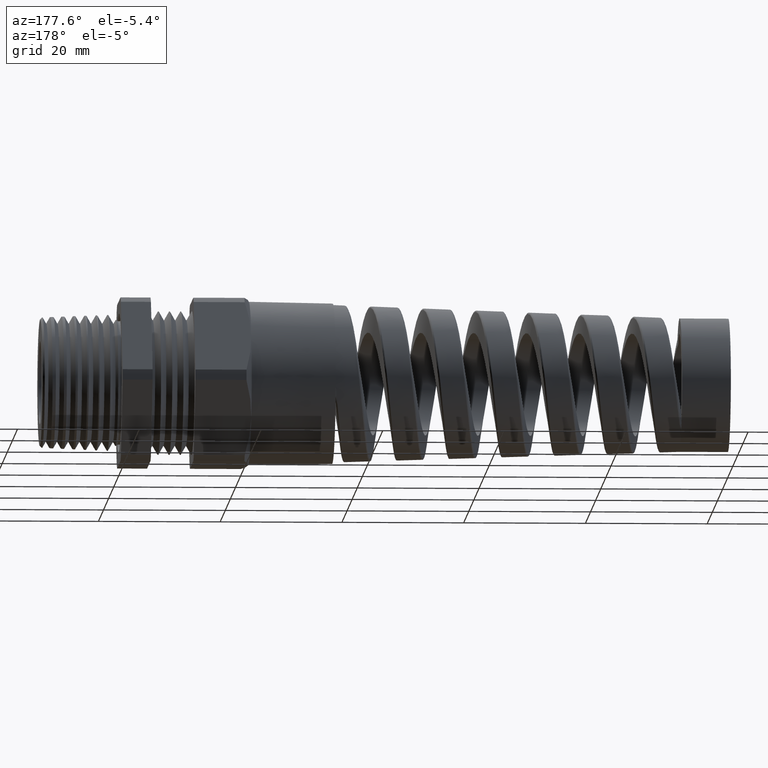
[diagram: clean part render]
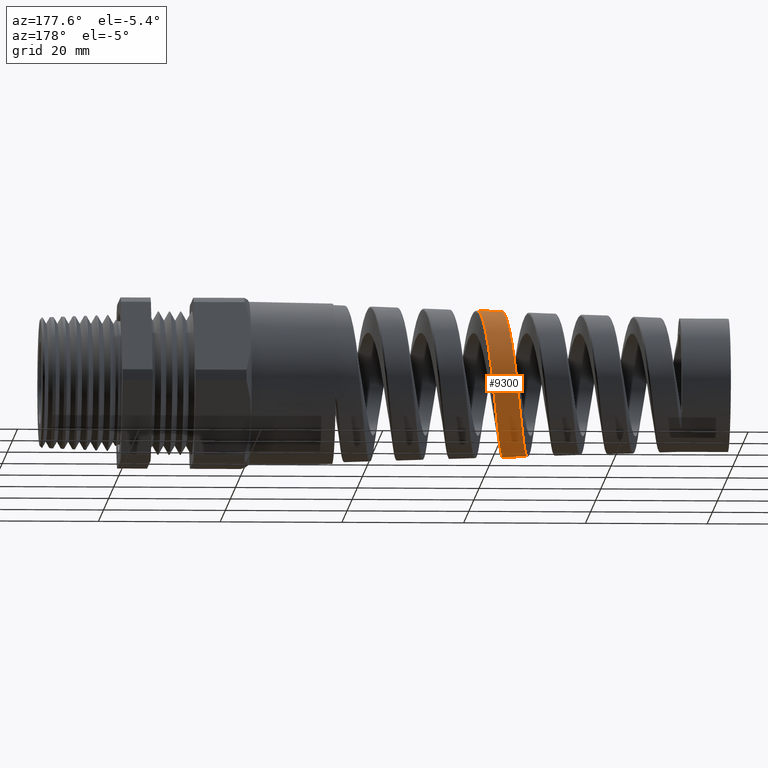
[diagram: same view with one face highlighted and labeled with its STEP entity id]
A machine part, auxiliary view. The second image highlights one B-rep face of the part: STEP entity #9300.
In plain terms, the highlighted conical surface has half-angle 2.001 deg.
Its self-contained STEP definition (entity closure, byte-faithful):
#2832 = B_SPLINE_CURVE_WITH_KNOTS ( 'NONE', 3,
 ( #2881, #2880, #2879, #2878, #2877, #2876, #2875, #2874, #2873, #2872, #2871, #2870, #2869, #2868, #2867, #2866, #2865, #2864, #2863, #2862, #2861, #2860, #2859, #2858, #2857, #2856, #2855, #2854, #2943, #2942, #2941, #2940, #2939, #2938, #2937, #2936, #2935, #2934, #2933, #2932, #2931, #2930, #2929, #2928, #2927, #2926 ),
 .UNSPECIFIED., .F., .F.,
 ( 4, 2, 2, 2, 2, 2, 2, 2, 2, 2, 2, 2, 2, 2, 2, 2, 2, 2, 2, 2, 2, 2, 4 ),
 ( 0.2117692628855186200, 0.2129603492854065500, 0.2141514356852944600, 0.2165336084850703300, 0.2177246948849582700, 0.2189157812848462100, 0.2212979540846220500, 0.2224890404845099900, 0.2236801268843979000, 0.2260622996841737700, 0.2284444724839496400, 0.2296355588838375800, 0.2308266452837255100, 0.2332088180835013800, 0.2355909908832772600, 0.2379731636830531000, 0.2391642500829410700, 0.2403553364828289700, 0.2427375092826048500, 0.2451196820823807200, 0.2475018548821565900, 0.2486929412820445300, 0.2498840276819324600 ),
 .UNSPECIFIED. ) ;
#2854 = CARTESIAN_POINT ( 'NONE',  ( -2.537967270265181400, 0.4550849624353888700, 0.1237118754605127200 ) ) ;
#2855 = CARTESIAN_POINT ( 'NONE',  ( -2.545037098795821500, 0.4670578433731356100, 0.06349444830292601300 ) ) ;
#2856 = CARTESIAN_POINT ( 'NONE',  ( -2.548544926428692600, 0.4700818496145421400, 0.03302318641316814200 ) ) ;
#2857 = CARTESIAN_POINT ( 'NONE',  ( -2.553872444854310000, 0.4701114422082105500, -0.01322274054949038200 ) ) ;
#2858 = CARTESIAN_POINT ( 'NONE',  ( -2.555666905592328700, 0.4693523486978479200, -0.02879371922910435900 ) ) ;
#2859 = CARTESIAN_POINT ( 'NONE',  ( -2.559221443272995200, 0.4663329732338020200, -0.05947746034167887600 ) ) ;
#2860 = CARTESIAN_POINT ( 'NONE',  ( -2.560988968504807100, 0.4640790047269091100, -0.07465521659790914900 ) ) ;
#2861 = CARTESIAN_POINT ( 'NONE',  ( -2.566285216770390700, 0.4551297916203755300, -0.1197035351832366800 ) ) ;
#2862 = CARTESIAN_POINT ( 'NONE',  ( -2.569812121951858200, 0.4462514398984158100, -0.1491350264738573200 ) ) ;
#2863 = CARTESIAN_POINT ( 'NONE',  ( -2.576973168489528700, 0.4225118027951231800, -0.2064716982333981700 ) ) ;
#2864 = CARTESIAN_POINT ( 'NONE',  ( -2.580499710013874500, 0.4080184810628724700, -0.2335108249342751600 ) ) ;
#2865 = CARTESIAN_POINT ( 'NONE',  ( -2.585804589551432100, 0.3824966804912276500, -0.2717082840487412600 ) ) ;
#2866 = CARTESIAN_POINT ( 'NONE',  ( -2.587575464526801600, 0.3733545118275945500, -0.2840443534512938100 ) ) ;
#2867 = CARTESIAN_POINT ( 'NONE',  ( -2.591140765767250300, 0.3537709517086529700, -0.3079027914534678800 ) ) ;
#2868 = CARTESIAN_POINT ( 'NONE',  ( -2.592939123927308300, 0.3432990667048865800, -0.3194429705014682500 ) ) ;
#2869 = CARTESIAN_POINT ( 'NONE',  ( -2.598279002016813600, 0.3106041714967566800, -0.3520790298631544200 ) ) ;
#2870 = CARTESIAN_POINT ( 'NONE',  ( -2.601803506733777500, 0.2869166248563562200, -0.3714747468751601900 ) ) ;
#2871 = CARTESIAN_POINT ( 'NONE',  ( -2.607132940450843000, 0.2485760337171892800, -0.3970420072565664600 ) ) ;
#2872 = CARTESIAN_POINT ( 'NONE',  ( -2.608923938658138200, 0.2352703477084158700, -0.4050007375308328800 ) ) ;
#2873 = CARTESIAN_POINT ( 'NONE',  ( -2.612507839593476400, 0.2079269657522441500, -0.4195556190461420800 ) ) ;
#2874 = CARTESIAN_POINT ( 'NONE',  ( -2.614286861037566000, 0.1939991121930573200, -0.4261007263113356600 ) ) ;
#2875 = CARTESIAN_POINT ( 'NONE',  ( -2.619611665186741600, 0.1514728498963927900, -0.4436038278756639400 ) ) ;
#2876 = CARTESIAN_POINT ( 'NONE',  ( -2.623143573885113400, 0.1221385735661792600, -0.4524498335735410200 ) ) ;
#2877 = CARTESIAN_POINT ( 'NONE',  ( -2.628514456278366200, 0.07663493960611825200, -0.4613714620362017200 ) ) ;
#2878 = CARTESIAN_POINT ( 'NONE',  ( -2.630314692305024200, 0.06123706236595084800, -0.4636004867277768200 ) ) ;
#2879 = CARTESIAN_POINT ( 'NONE',  ( -2.633879674200037000, 0.03061406576592377900, -0.4664994956016481600 ) ) ;
#2880 = CARTESIAN_POINT ( 'NONE',  ( -2.635654312737810900, 0.01530523684003182000, -0.4671879009970279500 ) ) ;
#2881 = CARTESIAN_POINT ( 'NONE',  ( -2.637429450301935800, -2.192460996810594900E-016, -0.4671258929059360900 ) ) ;
#2926 = CARTESIAN_POINT ( 'NONE',  ( -2.467270779108219300, -1.346590969780569100E-015, 0.4730697783809043000 ) ) ;
#2927 = CARTESIAN_POINT ( 'NONE',  ( -2.469023700943529900, 0.01531347027129598000, 0.4730085463169574900 ) ) ;
#2928 = CARTESIAN_POINT ( 'NONE',  ( -2.470779349826260200, 0.03064693398149727400, 0.4722054503191767100 ) ) ;
#2929 = CARTESIAN_POINT ( 'NONE',  ( -2.474313900516032400, 0.06135276564842985500, 0.4690802581714281800 ) ) ;
#2930 = CARTESIAN_POINT ( 'NONE',  ( -2.476097184438569500, 0.07676107699330064800, 0.4667422661737289400 ) ) ;
#2931 = CARTESIAN_POINT ( 'NONE',  ( -2.481392549425481600, 0.1220490655993793900, 0.4575821164971773900 ) ) ;
#2932 = CARTESIAN_POINT ( 'NONE',  ( -2.484886256684036600, 0.1513233263820677700, 0.4486175724705439600 ) ) ;
#2933 = CARTESIAN_POINT ( 'NONE',  ( -2.491928269230587300, 0.2080371280096089700, 0.4250231211186149000 ) ) ;
#2934 = CARTESIAN_POINT ( 'NONE',  ( -2.495494142379712300, 0.2355767497188871500, 0.4102801881972526500 ) ) ;
#2935 = CARTESIAN_POINT ( 'NONE',  ( -2.502618910801111400, 0.2871197930438307800, 0.3757040608057658500 ) ) ;
#2936 = CARTESIAN_POINT ( 'NONE',  ( -2.506136497689661600, 0.3108644798034901300, 0.3561079989270548000 ) ) ;
#2937 = CARTESIAN_POINT ( 'NONE',  ( -2.511409516034154100, 0.3433015076716601200, 0.3236000666529379500 ) ) ;
#2938 = CARTESIAN_POINT ( 'NONE',  ( -2.513168865377352300, 0.3535951777359465100, 0.3122311971198325500 ) ) ;
#2939 = CARTESIAN_POINT ( 'NONE',  ( -2.516708275258417300, 0.3731241191301657400, 0.2884089043579165500 ) ) ;
#2940 = CARTESIAN_POINT ( 'NONE',  ( -2.518497634790008100, 0.3824008091614422000, 0.2758856732038744200 ) ) ;
#2941 = CARTESIAN_POINT ( 'NONE',  ( -2.523820248174648100, 0.4080886030884500700, 0.2373733464843162100 ) ) ;
#2942 = CARTESIAN_POINT ( 'NONE',  ( -2.527324121147747500, 0.4225030630433169200, 0.2103498373021155100 ) ) ;
#2943 = CARTESIAN_POINT ( 'NONE',  ( -2.534381031369780300, 0.4459942405533908200, 0.1536648749362369300 ) ) ;
#3077 = DIRECTION ( 'NONE',  ( 0.9993904554178625300, 0.0000000000000000000, -0.03491013634572581700 ) ) ;
#3078 = VECTOR ( 'NONE', #3077, 39.37007874015748900 ) ;
#3079 = CARTESIAN_POINT ( 'NONE',  ( -0.8375000000000000200, 0.0000000000000000000, -0.5299999999999999200 ) ) ;
#3080 = LINE ( 'NONE', #3079, #3078 ) ;
#3173 = DIRECTION ( 'NONE',  ( 0.9993904554178625300, 4.275258673359080400E-018, 0.03491013634572581700 ) ) ;
#3174 = VECTOR ( 'NONE', #3173, 39.37007874015748900 ) ;
#3175 = CARTESIAN_POINT ( 'NONE',  ( -0.8375000000000000200, 6.490628035480970000E-017, 0.5299999999999999200 ) ) ;
#3176 = LINE ( 'NONE', #3175, #3174 ) ;
#3229 = CARTESIAN_POINT ( 'NONE',  ( -2.467270779108219300, -1.346590969780569100E-015, 0.4730697783809043000 ) ) ;
#3230 = CARTESIAN_POINT ( 'NONE',  ( -2.637429450301935800, -2.192460996810594900E-016, -0.4671258929059360900 ) ) ;
#3231 = DIRECTION ( 'NONE',  ( 0.0000000000000000000, 0.0000000000000000000, -1.000000000000000000 ) ) ;
#3232 = DIRECTION ( 'NONE',  ( 1.000000000000000000, 0.0000000000000000000, 0.0000000000000000000 ) ) ;
#3233 = CARTESIAN_POINT ( 'NONE',  ( -0.8375000000000000200, 0.0000000000000000000, 0.0000000000000000000 ) ) ;
#3234 = AXIS2_PLACEMENT_3D ( 'NONE', #3233, #3232, #3231 ) ;
#3235 = CONICAL_SURFACE ( 'NONE', #3234, 0.5299999999999999200, 0.03491723117042447300 ) ;
#3236 = FACE_OUTER_BOUND ( 'NONE', #9301, .T. ) ;
#3249 = CARTESIAN_POINT ( 'NONE',  ( -2.310750066868051200, 3.498591783972760300E-013, 0.4785372704663172800 ) ) ;
#3295 = CARTESIAN_POINT ( 'NONE',  ( -2.439964782670241700, 0.3255227910294448700, -0.3449324349452029300 ) ) ;
#3296 = CARTESIAN_POINT ( 'NONE',  ( -2.434597972197361400, 0.3587299709382154000, -0.3117199020541283100 ) ) ;
#3297 = CARTESIAN_POINT ( 'NONE',  ( -2.431070538078334400, 0.3783772736949242400, -0.2877245844798895200 ) ) ;
#3298 = CARTESIAN_POINT ( 'NONE',  ( -2.425759758804820500, 0.4042135133651760800, -0.2490400254188046800 ) ) ;
#3299 = CARTESIAN_POINT ( 'NONE',  ( -2.423986067521758600, 0.4122154660789657000, -0.2356933798910105000 ) ) ;
#3300 = CARTESIAN_POINT ( 'NONE',  ( -2.420413163234777200, 0.4269629243557556100, -0.2080723396452033000 ) ) ;
#3301 = CARTESIAN_POINT ( 'NONE',  ( -2.418621567913542800, 0.4336686518860238800, -0.1938535073509325700 ) ) ;
#3302 = CARTESIAN_POINT ( 'NONE',  ( -2.413297189031788500, 0.4514779977396946000, -0.1507239303610321500 ) ) ;
#3303 = CARTESIAN_POINT ( 'NONE',  ( -2.409779632107790900, 0.4604456775880863000, -0.1210724472786072600 ) ) ;
#3304 = CARTESIAN_POINT ( 'NONE',  ( -2.404456075622651000, 0.4695263059513646900, -0.07525497489002204400 ) ) ;
#3305 = CARTESIAN_POINT ( 'NONE',  ( -2.402663247873048700, 0.4718254872320609100, -0.05966986383591947600 ) ) ;
#3306 = CARTESIAN_POINT ( 'NONE',  ( -2.399100759438431500, 0.4748505004188990400, -0.02855000435678207000 ) ) ;
#3307 = CARTESIAN_POINT ( 'NONE',  ( -2.397331428635410200, 0.4755872073186125900, -0.01302012756552039900 ) ) ;
#3308 = CARTESIAN_POINT ( 'NONE',  ( -2.392033383456653600, 0.4755298415973824300, 0.03347881596271096900 ) ) ;
#3309 = CARTESIAN_POINT ( 'NONE',  ( -2.388516485701990300, 0.4724897747221306100, 0.06435828033644441800 ) ) ;
#3310 = CARTESIAN_POINT ( 'NONE',  ( -2.383164476019036000, 0.4632745209582789200, 0.1104801767670675300 ) ) ;
#3311 = CARTESIAN_POINT ( 'NONE',  ( -2.381382891012996600, 0.4594430261881101200, 0.1256832068850677600 ) ) ;
#3312 = CARTESIAN_POINT ( 'NONE',  ( -2.377846327461663000, 0.4503853261690232700, 0.1554183411191331100 ) ) ;
#3313 = CARTESIAN_POINT ( 'NONE',  ( -2.376085132247068200, 0.4451486176100057900, 0.1700043348304961500 ) ) ;
#3314 = CARTESIAN_POINT ( 'NONE',  ( -2.372560713021387700, 0.4332749615857340300, 0.1986173577735662300 ) ) ;
#3315 = CARTESIAN_POINT ( 'NONE',  ( -2.370797603825979000, 0.4266380324015675000, 0.2126444084280113600 ) ) ;
#3316 = CARTESIAN_POINT ( 'NONE',  ( -2.367254475226071400, 0.4119395140162499500, 0.2401279697022517300 ) ) ;
#3317 = CARTESIAN_POINT ( 'NONE',  ( -2.365464762476521300, 0.4038282241562103400, 0.2536513168369048400 ) ) ;
#3318 = CARTESIAN_POINT ( 'NONE',  ( -2.360141866670310200, 0.3777775908488472700, 0.2925905275397177000 ) ) ;
#3319 = CARTESIAN_POINT ( 'NONE',  ( -2.356637447804207100, 0.3581000153261949000, 0.3165350185953050800 ) ) ;
#3320 = CARTESIAN_POINT ( 'NONE',  ( -2.349584959243138800, 0.3142206596594907500, 0.3604586877919241400 ) ) ;
#3321 = CARTESIAN_POINT ( 'NONE',  ( -2.346007750537690400, 0.2897486311663534700, 0.3805674384422183500 ) ) ;
#3322 = CARTESIAN_POINT ( 'NONE',  ( -2.338958829364957900, 0.2381085607149590600, 0.4151207912105399600 ) ) ;
#3323 = CARTESIAN_POINT ( 'NONE',  ( -2.335459907832897500, 0.2108079145587564700, 0.4297736957096393000 ) ) ;
#3324 = CARTESIAN_POINT ( 'NONE',  ( -2.330154054543882600, 0.1676207356134710400, 0.4477679802718287900 ) ) ;
#3325 = CARTESIAN_POINT ( 'NONE',  ( -2.328368286536246500, 0.1527792138783580800, 0.4531128906158726800 ) ) ;
#3326 = CARTESIAN_POINT ( 'NONE',  ( -2.324832097316909400, 0.1229324181583183600, 0.4622320688025596800 ) ) ;
#3327 = CARTESIAN_POINT ( 'NONE',  ( -2.323074926490500000, 0.1078751249059565800, 0.4660354631670052300 ) ) ;
#3328 = CARTESIAN_POINT ( 'NONE',  ( -2.317809621496762500, 0.06231310755166663600, 0.4752254026898142800 ) ) ;
#3329 = CARTESIAN_POINT ( 'NONE',  ( -2.314307250040853200, 0.03142062122999701000, 0.4784130129762452200 ) ) ;
#3330 = CARTESIAN_POINT ( 'NONE',  ( -2.310750066868051200, 3.498591783972760300E-013, 0.4785372704663172800 ) ) ;
#3331 = B_SPLINE_CURVE_WITH_KNOTS ( 'NONE', 3,
 ( #3330, #3329, #3328, #3327, #3326, #3325, #3324, #3323, #3322, #3321, #3320, #3319, #3318, #3317, #3316, #3315, #3314, #3313, #3312, #3311, #3310, #3309, #3308, #3307, #3306, #3305, #3304, #3303, #3302, #3301, #3300, #3299, #3298, #3297, #3296, #3295, #3373, #3372, #3371, #3370, #3369, #3368, #3367, #3366, #3365, #3364, #3363, #3362, #3361 ),
 .UNSPECIFIED., .F., .F.,
 ( 4, 2, 2, 2, 2, 2, 2, 2, 2, 2, 2, 2, 2, 2, 2, 2, 2, 2, 2, 1, 2, 2, 2, 2, 4 ),
 ( 0.2177580897972512000, 0.2201534761869470600, 0.2213511693817949700, 0.2225488625766428900, 0.2249442489663387400, 0.2273396353560346000, 0.2297350217457304600, 0.2309327149405784000, 0.2321304081354263500, 0.2333281013302742600, 0.2345257945251222100, 0.2369211809148180600, 0.2381188741096660100, 0.2393165673045139500, 0.2417119536942098100, 0.2429096468890577500, 0.2441073400839056700, 0.2465027264736015200, 0.2477004196684494700, 0.2488981128632973800, 0.2500958060581453000, 0.2512934992529932700, 0.2536888856426891000, 0.2548865788375370700, 0.2560842720323849900 ),
 .UNSPECIFIED. ) ;
#3332 = CARTESIAN_POINT ( 'NONE',  ( -2.480944283468905300, 4.828263417522309700E-013, -0.4725921433394972300 ) ) ;
#3361 = CARTESIAN_POINT ( 'NONE',  ( -2.480944283468905300, 4.828263417522309700E-013, -0.4725921433394972300 ) ) ;
#3362 = CARTESIAN_POINT ( 'NONE',  ( -2.479163585529757800, 0.01553740804101073900, -0.4726543456624164300 ) ) ;
#3363 = CARTESIAN_POINT ( 'NONE',  ( -2.477370719096418000, 0.03118497149738737000, -0.4719478840560534200 ) ) ;
#3364 = CARTESIAN_POINT ( 'NONE',  ( -2.473775905729663100, 0.06241029080970957700, -0.4689680149876281300 ) ) ;
#3365 = CARTESIAN_POINT ( 'NONE',  ( -2.471992545593787700, 0.07782610047941609900, -0.4667149173401294300 ) ) ;
#3366 = CARTESIAN_POINT ( 'NONE',  ( -2.466659831545649600, 0.1234992876585174200, -0.4577401504546769200 ) ) ;
#3367 = CARTESIAN_POINT ( 'NONE',  ( -2.463129881513416800, 0.1531880234364073300, -0.4488236042742010900 ) ) ;
#3368 = CARTESIAN_POINT ( 'NONE',  ( -2.457763581872721500, 0.1965442311435362500, -0.4309571092379325700 ) ) ;
#3369 = CARTESIAN_POINT ( 'NONE',  ( -2.455962716993846100, 0.2107946946381401600, -0.4242368719636101000 ) ) ;
#3370 = CARTESIAN_POINT ( 'NONE',  ( -2.452399194414681900, 0.2382703562876669100, -0.4095808252526375000 ) ) ;
#3371 = CARTESIAN_POINT ( 'NONE',  ( -2.448853744493771700, 0.2648861080542227500, -0.3936469690499035400 ) ) ;
#3372 = CARTESIAN_POINT ( 'NONE',  ( -2.445314113373110200, 0.2898067197957606100, -0.3752002900876548200 ) ) ;
#3373 = CARTESIAN_POINT ( 'NONE',  ( -2.441759005741932100, 0.3138675356042988100, -0.3554828615564524800 ) ) ;
#9248 = ORIENTED_EDGE ( 'NONE', *, *, #9249, .T. ) ;
#9249 = EDGE_CURVE ( 'NONE', #9304, #9305, #2832, .T. ) ;
#9270 = ORIENTED_EDGE ( 'NONE', *, *, #9271, .F. ) ;
#9271 = EDGE_CURVE ( 'NONE', #9304, #9310, #3080, .T. ) ;
#9292 = EDGE_CURVE ( 'NONE', #9305, #9293, #3176, .T. ) ;
#9293 = VERTEX_POINT ( 'NONE', #3249 ) ;
#9294 = ORIENTED_EDGE ( 'NONE', *, *, #9309, .T. ) ;
#9300 = ADVANCED_FACE ( 'NONE', ( #3236 ), #3235, .T. ) ;
#9301 = EDGE_LOOP ( 'NONE', ( #9248, #9306, #9294, #9270 ) ) ;
#9304 = VERTEX_POINT ( 'NONE', #3230 ) ;
#9305 = VERTEX_POINT ( 'NONE', #3229 ) ;
#9306 = ORIENTED_EDGE ( 'NONE', *, *, #9292, .T. ) ;
#9309 = EDGE_CURVE ( 'NONE', #9293, #9310, #3331, .T. ) ;
#9310 = VERTEX_POINT ( 'NONE', #3332 ) ;